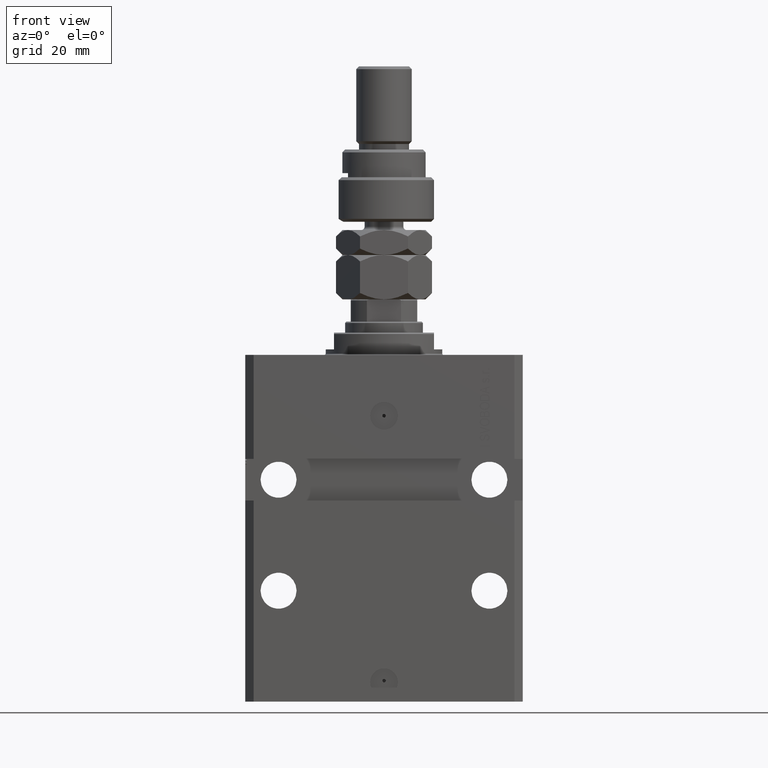
[diagram: clean part render]
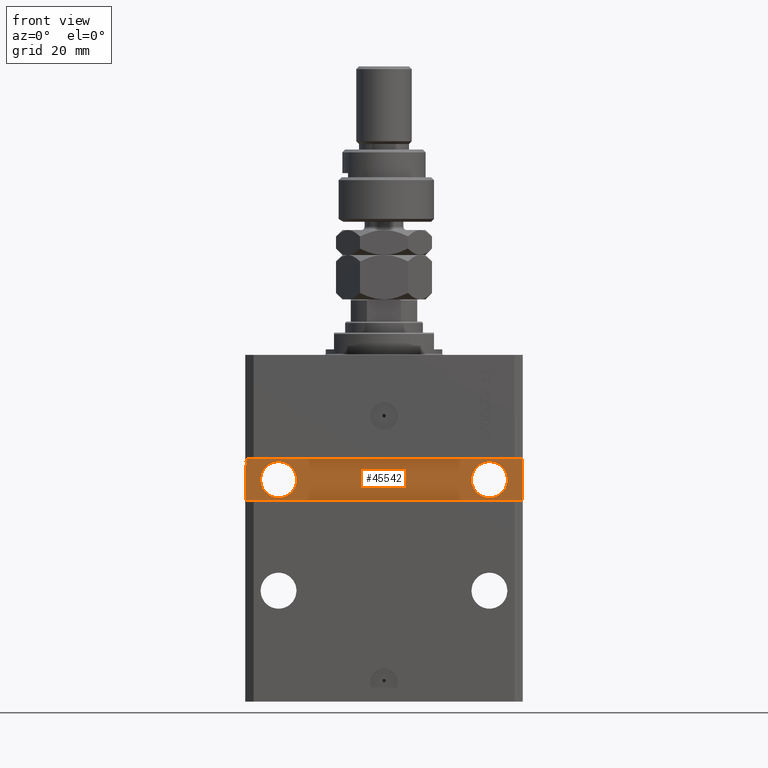
[diagram: same view with one face highlighted and labeled with its STEP entity id]
A machine part, front view. The second image highlights one B-rep face of the part: STEP entity #45542.
In plain terms, the highlighted planar face has unit normal (0, -1, 0).
Its self-contained STEP definition (entity closure, byte-faithful):
#71 = ORIENTED_EDGE ( 'NONE', *, *, #24876, .F. ) ;
#403 = DIRECTION ( 'NONE',  ( 1.000000000000000000, 0.000000000000000000, 0.000000000000000000 ) ) ;
#921 = DIRECTION ( 'NONE',  ( 1.101411730780568590E-16, -1.000000000000000000, 0.000000000000000000 ) ) ;
#926 = CARTESIAN_POINT ( 'NONE',  ( -49.50000000000000711, -32.49999999999999289, -37.62144886363635976 ) ) ;
#3128 = EDGE_CURVE ( 'NONE', #25345, #35643, #48071, .T. ) ;
#3571 = ORIENTED_EDGE ( 'NONE', *, *, #18423, .F. ) ;
#4059 = EDGE_CURVE ( 'NONE', #42611, #28679, #28557, .T. ) ;
#4320 = DIRECTION ( 'NONE',  ( 1.101411730780568590E-16, -1.000000000000000000, 0.000000000000000000 ) ) ;
#4474 = ORIENTED_EDGE ( 'NONE', *, *, #20079, .T. ) ;
#4882 = LINE ( 'NONE', #48948, #35946 ) ;
#5652 = LINE ( 'NONE', #44780, #25421 ) ;
#5923 = ORIENTED_EDGE ( 'NONE', *, *, #30675, .F. ) ;
#6515 = VECTOR ( 'NONE', #16056, 1000.000000000000000 ) ;
#6611 = VECTOR ( 'NONE', #28263, 1000.000000000000000 ) ;
#6706 = AXIS2_PLACEMENT_3D ( 'NONE', #20443, #921, #403 ) ;
#7750 = CARTESIAN_POINT ( 'NONE',  ( -50.00000000000001421, -32.50000000000000711, -52.50000000000000000 ) ) ;
#7793 = DIRECTION ( 'NONE',  ( 0.000000000000000000, 0.000000000000000000, 1.000000000000000000 ) ) ;
#8933 = VECTOR ( 'NONE', #7793, 1000.000000000000000 ) ;
#9261 = DIRECTION ( 'NONE',  ( 0.000000000000000000, 0.000000000000000000, -1.000000000000000000 ) ) ;
#9333 = EDGE_CURVE ( 'NONE', #30462, #27091, #30959, .T. ) ;
#9976 = ORIENTED_EDGE ( 'NONE', *, *, #23610, .T. ) ;
#11021 = VERTEX_POINT ( 'NONE', #30087 ) ;
#12448 = CARTESIAN_POINT ( 'NONE',  ( -49.50000000000016342, -32.50000000000000711, -39.86910993535713743 ) ) ;
#12636 = DIRECTION ( 'NONE',  ( 1.000000000000000000, 0.000000000000000000, 0.000000000000000000 ) ) ;
#13099 = CARTESIAN_POINT ( 'NONE',  ( -49.50000000000001421, -32.50000000000000711, -39.43474002179300442 ) ) ;
#13402 = LINE ( 'NONE', #926, #6611 ) ;
#13474 = CARTESIAN_POINT ( 'NONE',  ( 38.00000000000001421, -32.50000000000000000, -45.00000000000000000 ) ) ;
#13976 = CARTESIAN_POINT ( 'NONE',  ( 4.616128571667027759E-15, -32.50000000000000000, 0.000000000000000000 ) ) ;
#14243 = DIRECTION ( 'NONE',  ( 1.000000000000000000, 0.000000000000000000, 0.000000000000000000 ) ) ;
#14315 = CIRCLE ( 'NONE', #6706, 6.499999999999999112 ) ;
#15395 = LINE ( 'NONE', #12448, #29917 ) ;
#15742 = DIRECTION ( 'NONE',  ( -1.000000000000000000, -0.000000000000000000, -0.000000000000000000 ) ) ;
#15820 = DIRECTION ( 'NONE',  ( 1.000000000000000000, 1.387778780781445676E-16, 1.387778780781445676E-16 ) ) ;
#16056 = DIRECTION ( 'NONE',  ( 0.000000000000000000, 0.000000000000000000, -1.000000000000000000 ) ) ;
#16093 = CARTESIAN_POINT ( 'NONE',  ( -49.50000000000000711, -32.50000000000000711, -37.62144886363635976 ) ) ;
#16118 = EDGE_CURVE ( 'NONE', #42038, #20312, #49445, .T. ) ;
#16124 = VERTEX_POINT ( 'NONE', #37445 ) ;
#16483 = VECTOR ( 'NONE', #24052, 1000.000000000000000 ) ;
#17314 = CARTESIAN_POINT ( 'NONE',  ( -50.00000000000001421, -32.50000000000000711, -37.50000000000000711 ) ) ;
#17669 = ORIENTED_EDGE ( 'NONE', *, *, #24777, .T. ) ;
#17930 = CARTESIAN_POINT ( 'NONE',  ( -49.50000000000000711, -32.50000000000000711, -37.99999999999999289 ) ) ;
#18423 = EDGE_CURVE ( 'NONE', #29440, #48349, #18626, .T. ) ;
#18626 = CIRCLE ( 'NONE', #23614, 6.499999999999999112 ) ;
#19408 = CARTESIAN_POINT ( 'NONE',  ( -49.50000000000000711, -32.49999999999999289, -37.99999999999999289 ) ) ;
#19537 = AXIS2_PLACEMENT_3D ( 'NONE', #51517, #4320, #47094 ) ;
#20040 = CARTESIAN_POINT ( 'NONE',  ( 49.99999999999999289, -32.49999999999999289, -52.49999999999998579 ) ) ;
#20079 = EDGE_CURVE ( 'NONE', #27091, #37732, #35447, .T. ) ;
#20312 = VERTEX_POINT ( 'NONE', #17930 ) ;
#20443 = CARTESIAN_POINT ( 'NONE',  ( -37.99999999999998579, -32.50000000000000711, -45.00000000000000711 ) ) ;
#20504 = DIRECTION ( 'NONE',  ( -1.000000000000000000, -1.387778780781445676E-16, -1.387778780781445676E-16 ) ) ;
#20813 = EDGE_CURVE ( 'NONE', #20312, #42611, #34547, .T. ) ;
#21052 = VECTOR ( 'NONE', #34037, 1000.000000000000000 ) ;
#21089 = ORIENTED_EDGE ( 'NONE', *, *, #29418, .F. ) ;
#21757 = CARTESIAN_POINT ( 'NONE',  ( -50.00000000000001421, -32.50000000000000711, -37.50000000000000711 ) ) ;
#21777 = CARTESIAN_POINT ( 'NONE',  ( -49.50000000000000711, -32.49999999999999289, -37.62144886363635976 ) ) ;
#22304 = DIRECTION ( 'NONE',  ( 8.806446732139697737E-17, -1.000000000000000000, 1.232595164407830672E-32 ) ) ;
#22872 = VERTEX_POINT ( 'NONE', #47044 ) ;
#23610 = EDGE_CURVE ( 'NONE', #25345, #30462, #29592, .T. ) ;
#23614 = AXIS2_PLACEMENT_3D ( 'NONE', #13474, #22304, #14243 ) ;
#24052 = DIRECTION ( 'NONE',  ( 1.000000000000000000, 0.000000000000000000, 0.000000000000000000 ) ) ;
#24771 = EDGE_CURVE ( 'NONE', #42038, #22872, #13402, .T. ) ;
#24777 = EDGE_CURVE ( 'NONE', #50025, #22872, #41314, .T. ) ;
#24876 = EDGE_CURVE ( 'NONE', #35643, #39065, #15395, .T. ) ;
#25345 = VERTEX_POINT ( 'NONE', #48655 ) ;
#25421 = VECTOR ( 'NONE', #20504, 1000.000000000000000 ) ;
#26039 = CARTESIAN_POINT ( 'NONE',  ( 49.99999999999999289, -32.49999999999999289, -37.49999999999999289 ) ) ;
#27091 = VERTEX_POINT ( 'NONE', #47895 ) ;
#28038 = CARTESIAN_POINT ( 'NONE',  ( -50.00000000000001421, -32.50000000000000711, -37.50000000000000711 ) ) ;
#28263 = DIRECTION ( 'NONE',  ( -1.000000000000000000, -0.000000000000000000, -0.000000000000000000 ) ) ;
#28353 = DIRECTION ( 'NONE',  ( 3.791485858024926499E-13, 5.261743621399925654E-29, 1.000000000000000000 ) ) ;
#28557 = LINE ( 'NONE', #28038, #6515 ) ;
#28679 = VERTEX_POINT ( 'NONE', #40215 ) ;
#28802 = CARTESIAN_POINT ( 'NONE',  ( 38.00000000000001421, -32.50000000000000000, -45.00000000000000000 ) ) ;
#29330 = CARTESIAN_POINT ( 'NONE',  ( -49.49999999999999289, -32.50000000000000711, -39.43474004052496440 ) ) ;
#29418 = EDGE_CURVE ( 'NONE', #39065, #28679, #4882, .T. ) ;
#29440 = VERTEX_POINT ( 'NONE', #36691 ) ;
#29592 = LINE ( 'NONE', #21757, #47380 ) ;
#29917 = VECTOR ( 'NONE', #28353, 1000.000000000000000 ) ;
#30087 = CARTESIAN_POINT ( 'NONE',  ( -44.49999999999998579, -32.50000000000000711, -45.00000000000000711 ) ) ;
#30462 = VERTEX_POINT ( 'NONE', #40359 ) ;
#30675 = EDGE_CURVE ( 'NONE', #16124, #11021, #14315, .T. ) ;
#30877 = VECTOR ( 'NONE', #15820, 1000.000000000000000 ) ;
#30959 = LINE ( 'NONE', #7750, #30877 ) ;
#31185 = CIRCLE ( 'NONE', #19537, 6.499999999999999112 ) ;
#31501 = ORIENTED_EDGE ( 'NONE', *, *, #34553, .F. ) ;
#32422 = CARTESIAN_POINT ( 'NONE',  ( 31.50000000000001421, -32.50000000000000000, -45.00000000000000000 ) ) ;
#33797 = DIRECTION ( 'NONE',  ( -1.000000000000000000, -0.000000000000000000, -0.000000000000000000 ) ) ;
#34037 = DIRECTION ( 'NONE',  ( 0.000000000000000000, 0.000000000000000000, -1.000000000000000000 ) ) ;
#34333 = AXIS2_PLACEMENT_3D ( 'NONE', #28802, #43687, #12636 ) ;
#34547 = LINE ( 'NONE', #19408, #43100 ) ;
#34553 = EDGE_CURVE ( 'NONE', #48349, #29440, #46013, .T. ) ;
#34685 = ORIENTED_EDGE ( 'NONE', *, *, #51441, .T. ) ;
#34830 = EDGE_LOOP ( 'NONE', ( #45861, #21089, #71, #41745, #9976, #38121, #4474, #34685, #17669, #39437, #43872, #41195 ) ) ;
#35447 = LINE ( 'NONE', #20040, #8933 ) ;
#35643 = VERTEX_POINT ( 'NONE', #29330 ) ;
#35699 = ORIENTED_EDGE ( 'NONE', *, *, #46622, .F. ) ;
#35946 = VECTOR ( 'NONE', #33797, 1000.000000000000000 ) ;
#36369 = DIRECTION ( 'NONE',  ( 0.000000000000000000, 0.000000000000000000, -1.000000000000000000 ) ) ;
#36515 = CARTESIAN_POINT ( 'NONE',  ( -50.00000000000001421, -32.50000000000000711, -37.99999999999999289 ) ) ;
#36691 = CARTESIAN_POINT ( 'NONE',  ( 44.50000000000001421, -32.50000000000000000, -45.00000000000000000 ) ) ;
#37445 = CARTESIAN_POINT ( 'NONE',  ( -31.49999999999998579, -32.50000000000000711, -45.00000000000000711 ) ) ;
#37732 = VERTEX_POINT ( 'NONE', #26039 ) ;
#38121 = ORIENTED_EDGE ( 'NONE', *, *, #9333, .T. ) ;
#39065 = VERTEX_POINT ( 'NONE', #46498 ) ;
#39437 = ORIENTED_EDGE ( 'NONE', *, *, #24771, .F. ) ;
#40215 = CARTESIAN_POINT ( 'NONE',  ( -50.00000000000001421, -32.50000000000000711, -38.87066340383893959 ) ) ;
#40359 = CARTESIAN_POINT ( 'NONE',  ( -50.00000000000001421, -32.50000000000000711, -52.50000000000000000 ) ) ;
#41173 = CARTESIAN_POINT ( 'NONE',  ( -50.00000000000001421, -32.50000000000000711, -37.50000000000000711 ) ) ;
#41195 = ORIENTED_EDGE ( 'NONE', *, *, #20813, .T. ) ;
#41314 = LINE ( 'NONE', #17314, #46609 ) ;
#41745 = ORIENTED_EDGE ( 'NONE', *, *, #3128, .F. ) ;
#41886 = FACE_OUTER_BOUND ( 'NONE', #34830, .T. ) ;
#42038 = VERTEX_POINT ( 'NONE', #16093 ) ;
#42611 = VERTEX_POINT ( 'NONE', #36515 ) ;
#43100 = VECTOR ( 'NONE', #15742, 1000.000000000000000 ) ;
#43687 = DIRECTION ( 'NONE',  ( 8.806446732139697737E-17, -1.000000000000000000, 1.232595164407830672E-32 ) ) ;
#43872 = ORIENTED_EDGE ( 'NONE', *, *, #16118, .T. ) ;
#44500 = AXIS2_PLACEMENT_3D ( 'NONE', #13976, #50474, #46068 ) ;
#44780 = CARTESIAN_POINT ( 'NONE',  ( 49.99999999999999289, -32.49999999999999289, -37.49999999999999289 ) ) ;
#45542 = ADVANCED_FACE ( 'NONE', ( #46827, #50218, #41886 ), #49965, .T. ) ;
#45861 = ORIENTED_EDGE ( 'NONE', *, *, #4059, .T. ) ;
#46013 = CIRCLE ( 'NONE', #34333, 6.499999999999999112 ) ;
#46068 = DIRECTION ( 'NONE',  ( 1.000000000000000000, 1.387778780781445676E-16, 0.000000000000000000 ) ) ;
#46432 = EDGE_LOOP ( 'NONE', ( #5923, #35699 ) ) ;
#46498 = CARTESIAN_POINT ( 'NONE',  ( -49.49999999999977973, -32.50000000000000711, -38.87066337907741342 ) ) ;
#46609 = VECTOR ( 'NONE', #36369, 1000.000000000000000 ) ;
#46622 = EDGE_CURVE ( 'NONE', #11021, #16124, #31185, .T. ) ;
#46827 = FACE_BOUND ( 'NONE', #47015, .T. ) ;
#47015 = EDGE_LOOP ( 'NONE', ( #3571, #31501 ) ) ;
#47044 = CARTESIAN_POINT ( 'NONE',  ( -50.00000000000001421, -32.50000000000000711, -37.62144886363636687 ) ) ;
#47094 = DIRECTION ( 'NONE',  ( 1.000000000000000000, 0.000000000000000000, 0.000000000000000000 ) ) ;
#47380 = VECTOR ( 'NONE', #9261, 1000.000000000000000 ) ;
#47895 = CARTESIAN_POINT ( 'NONE',  ( 49.99999999999999289, -32.49999999999999289, -52.49999999999998579 ) ) ;
#48071 = LINE ( 'NONE', #13099, #16483 ) ;
#48349 = VERTEX_POINT ( 'NONE', #32422 ) ;
#48655 = CARTESIAN_POINT ( 'NONE',  ( -50.00000000000001421, -32.50000000000000711, -39.43474002179300442 ) ) ;
#48948 = CARTESIAN_POINT ( 'NONE',  ( -49.50000000000001421, -32.50000000000001421, -38.87066340383893959 ) ) ;
#49445 = LINE ( 'NONE', #21777, #21052 ) ;
#49965 = PLANE ( 'NONE',  #44500 ) ;
#50025 = VERTEX_POINT ( 'NONE', #41173 ) ;
#50218 = FACE_BOUND ( 'NONE', #46432, .T. ) ;
#50474 = DIRECTION ( 'NONE',  ( 1.387778780781445676E-16, -1.000000000000000000, 0.000000000000000000 ) ) ;
#51441 = EDGE_CURVE ( 'NONE', #37732, #50025, #5652, .T. ) ;
#51517 = CARTESIAN_POINT ( 'NONE',  ( -37.99999999999998579, -32.50000000000000711, -45.00000000000000711 ) ) ;